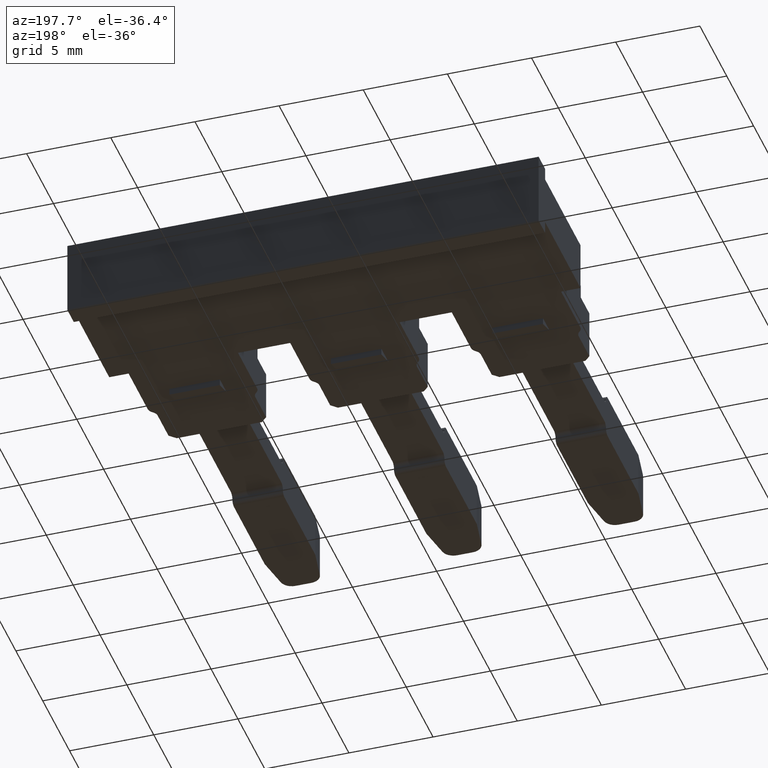
[diagram: clean part render]
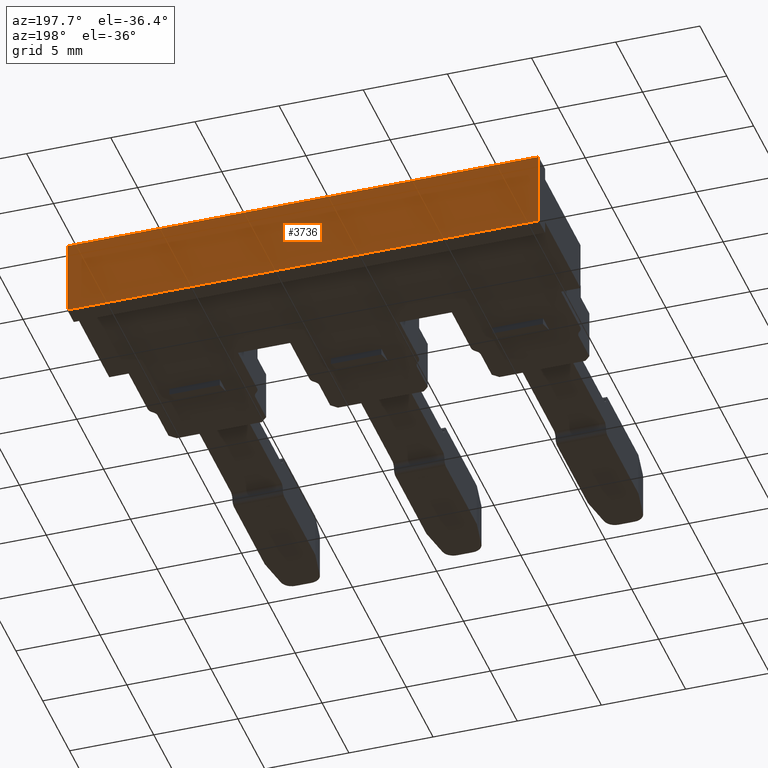
[diagram: same view with one face highlighted and labeled with its STEP entity id]
A machine part, auxiliary view. The second image highlights one B-rep face of the part: STEP entity #3736.
In plain terms, the highlighted planar face has unit normal (0, -1, 0).
Its self-contained STEP definition (entity closure, byte-faithful):
#23 = ORIENTED_EDGE ( 'NONE', *, *, #3710, .F. ) ;
#44 = ORIENTED_EDGE ( 'NONE', *, *, #3767, .F. ) ;
#52 = ORIENTED_EDGE ( 'NONE', *, *, #3751, .T. ) ;
#54 = ORIENTED_EDGE ( 'NONE', *, *, #3722, .T. ) ;
#208 = CARTESIAN_POINT ( 'NONE',  ( 1129.594470802330100, 674.2878760720548100, -0.7499999999999997800 ) ) ;
#210 = CARTESIAN_POINT ( 'NONE',  ( 1129.594470802330100, 674.2878760720548100, 3.750000000000000000 ) ) ;
#238 = CARTESIAN_POINT ( 'NONE',  ( 1157.594465032600300, 674.2878760720548100, -0.7499999999999997800 ) ) ;
#251 = CARTESIAN_POINT ( 'NONE',  ( 1157.594465032600300, 674.2878760720548100, 3.750000000000000000 ) ) ;
#727 = DIRECTION ( 'NONE',  ( 1.000000000000000000, 0.0000000000000000000, 0.0000000000000000000 ) ) ;
#728 = CARTESIAN_POINT ( 'NONE',  ( 1129.594470802330100, 674.2878760720548100, -0.7499999999999997800 ) ) ;
#761 = LINE ( 'NONE', #728, #3430 ) ;
#769 = CARTESIAN_POINT ( 'NONE',  ( 1129.594470802330100, 674.2878760720548100, 3.000000000000000000 ) ) ;
#772 = LINE ( 'NONE', #769, #3408 ) ;
#775 = DIRECTION ( 'NONE',  ( -0.0000000000000000000, -0.0000000000000000000, 1.000000000000000000 ) ) ;
#819 = CARTESIAN_POINT ( 'NONE',  ( 1129.594470802330100, 674.2878760720548100, 3.000000000000000000 ) ) ;
#839 = PLANE ( 'NONE',  #3437 ) ;
#842 = DIRECTION ( 'NONE',  ( 0.0000000000000000000, -1.000000000000000000, 0.0000000000000000000 ) ) ;
#851 = FACE_OUTER_BOUND ( 'NONE', #2529, .T. ) ;
#853 = DIRECTION ( 'NONE',  ( 0.0000000000000000000, -0.0000000000000000000, -1.000000000000000000 ) ) ;
#880 = LINE ( 'NONE', #888, #3398 ) ;
#888 = CARTESIAN_POINT ( 'NONE',  ( 1157.594465032600300, 674.2878760720548100, 3.000000000000000000 ) ) ;
#938 = DIRECTION ( 'NONE',  ( -0.0000000000000000000, -0.0000000000000000000, -1.000000000000000000 ) ) ;
#976 = CARTESIAN_POINT ( 'NONE',  ( 1129.594470802330100, 674.2878760720548100, 3.750000000000000000 ) ) ;
#977 = LINE ( 'NONE', #976, #3474 ) ;
#982 = DIRECTION ( 'NONE',  ( -1.000000000000000000, -0.0000000000000000000, -0.0000000000000000000 ) ) ;
#2333 = VERTEX_POINT ( 'NONE', #238 ) ;
#2344 = VERTEX_POINT ( 'NONE', #251 ) ;
#2376 = VERTEX_POINT ( 'NONE', #208 ) ;
#2378 = VERTEX_POINT ( 'NONE', #210 ) ;
#2529 = EDGE_LOOP ( 'NONE', ( #52, #23, #54, #44 ) ) ;
#3398 = VECTOR ( 'NONE', #938, 1000.000000000000000 ) ;
#3408 = VECTOR ( 'NONE', #775, 1000.000000000000000 ) ;
#3430 = VECTOR ( 'NONE', #727, 1000.000000000000000 ) ;
#3437 = AXIS2_PLACEMENT_3D ( 'NONE', #819, #842, #853 ) ;
#3474 = VECTOR ( 'NONE', #982, 1000.000000000000000 ) ;
#3710 = EDGE_CURVE ( 'NONE', #2376, #2333, #761, .T. ) ;
#3722 = EDGE_CURVE ( 'NONE', #2376, #2378, #772, .T. ) ;
#3736 = ADVANCED_FACE ( 'NONE', ( #851 ), #839, .F. ) ;
#3751 = EDGE_CURVE ( 'NONE', #2344, #2333, #880, .T. ) ;
#3767 = EDGE_CURVE ( 'NONE', #2344, #2378, #977, .T. ) ;